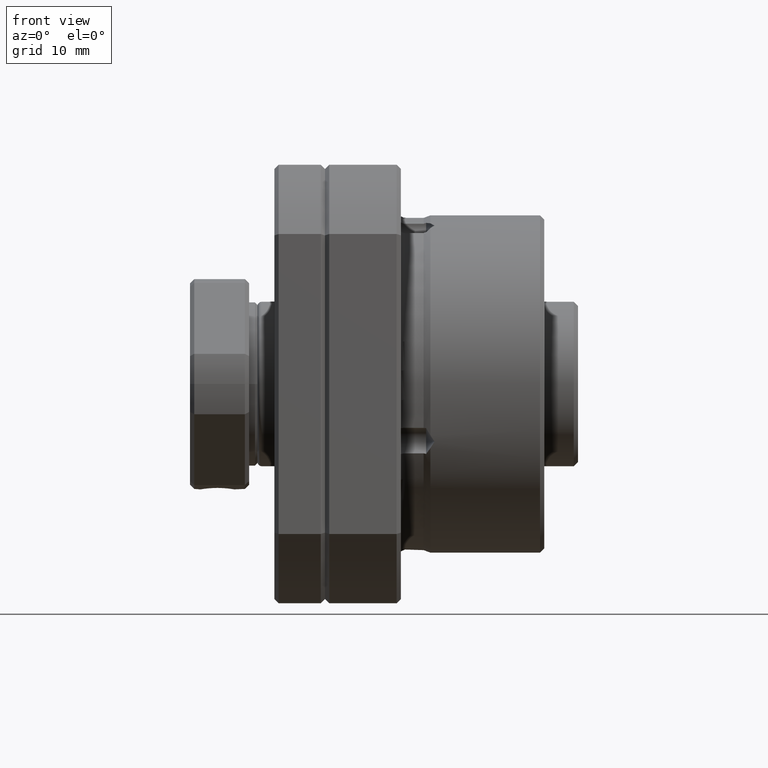
[diagram: clean part render]
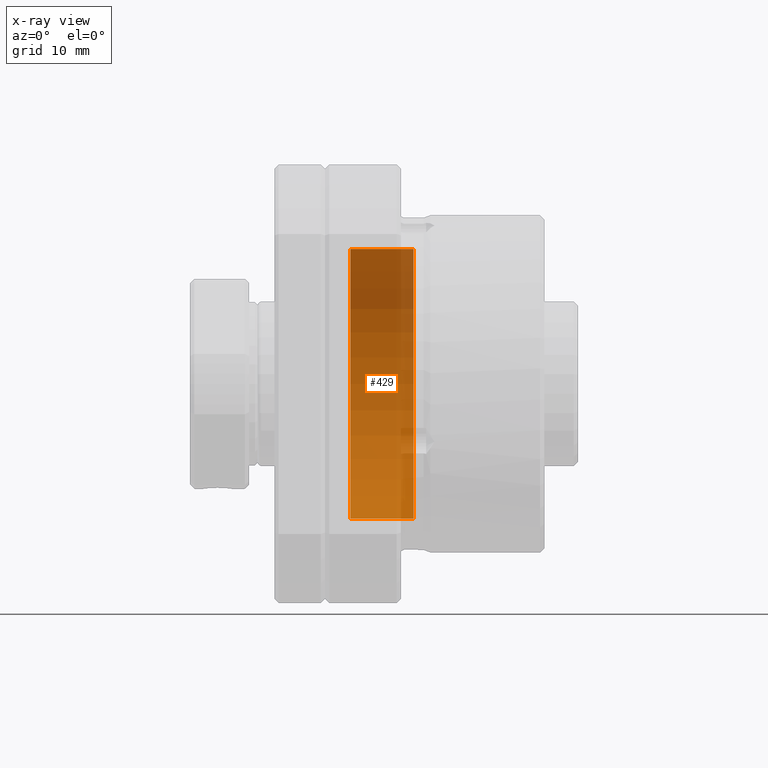
[diagram: x-ray — body ghosted, one internal face saturated and labeled with its STEP entity id]
A machine part, front view, then the same camera in x-ray: the body is ghosted and one INTERNAL B-rep face — a face not visible from any outside direction — is saturated and labeled: STEP entity #429.
In plain terms, the highlighted cylindrical surface (partial cylindrical patch) has radius 16 mm, axis along (-1, 0, 0).
Its self-contained STEP definition (entity closure, byte-faithful):
#421 = VERTEX_POINT ( 'NONE', #3495 ) ;
#422 = VERTEX_POINT ( 'NONE', #3494 ) ;
#423 = EDGE_CURVE ( 'NONE', #421, #459, #3493, .T. ) ;
#424 = ORIENTED_EDGE ( 'NONE', *, *, #423, .T. ) ;
#425 = EDGE_LOOP ( 'NONE', ( #427, #424, #460, #448 ) ) ;
#426 = EDGE_CURVE ( 'NONE', #422, #421, #3489, .T. ) ;
#427 = ORIENTED_EDGE ( 'NONE', *, *, #426, .T. ) ;
#429 = ADVANCED_FACE ( 'NONE', ( #3479 ), #3478, .T. ) ;
#448 = ORIENTED_EDGE ( 'NONE', *, *, #450, .F. ) ;
#449 = VERTEX_POINT ( 'NONE', #3558 ) ;
#450 = EDGE_CURVE ( 'NONE', #422, #449, #3557, .T. ) ;
#454 = EDGE_CURVE ( 'NONE', #449, #459, #3552, .T. ) ;
#459 = VERTEX_POINT ( 'NONE', #3536 ) ;
#460 = ORIENTED_EDGE ( 'NONE', *, *, #454, .F. ) ;
#3477 = AXIS2_PLACEMENT_3D ( 'NONE', #3534, #3533, #3532 ) ;
#3478 = CYLINDRICAL_SURFACE ( 'NONE', #3477, 16.00000000000000700 ) ;
#3479 = FACE_OUTER_BOUND ( 'NONE', #425, .T. ) ;
#3485 = DIRECTION ( 'NONE',  ( 0.0000000000000000000, 4.996003610813203400E-016, 1.000000000000000000 ) ) ;
#3486 = DIRECTION ( 'NONE',  ( -1.000000000000000000, 0.0000000000000000000, 0.0000000000000000000 ) ) ;
#3487 = CARTESIAN_POINT ( 'NONE',  ( 10.49999999999999500, 0.0000000000000000000, 0.0000000000000000000 ) ) ;
#3488 = AXIS2_PLACEMENT_3D ( 'NONE', #3487, #3486, #3485 ) ;
#3489 = CIRCLE ( 'NONE', #3488, 16.00000000000000700 ) ;
#3490 = DIRECTION ( 'NONE',  ( -1.000000000000000000, 0.0000000000000000000, 0.0000000000000000000 ) ) ;
#3491 = VECTOR ( 'NONE', #3490, 1000.000000000000000 ) ;
#3492 = CARTESIAN_POINT ( 'NONE',  ( -61.86252019386108700, -6.034235611185322700E-015, -16.00000000000000700 ) ) ;
#3493 = LINE ( 'NONE', #3492, #3491 ) ;
#3494 = CARTESIAN_POINT ( 'NONE',  ( 10.49999999999999500, 7.993605777301128700E-015, 16.00000000000000700 ) ) ;
#3495 = CARTESIAN_POINT ( 'NONE',  ( 10.49999999999999500, -6.034235611185322700E-015, -16.00000000000000700 ) ) ;
#3532 = DIRECTION ( 'NONE',  ( 0.0000000000000000000, 4.996003610813203400E-016, 1.000000000000000000 ) ) ;
#3533 = DIRECTION ( 'NONE',  ( -1.000000000000000000, 0.0000000000000000000, 0.0000000000000000000 ) ) ;
#3534 = CARTESIAN_POINT ( 'NONE',  ( -61.86252019386108700, 0.0000000000000000000, 0.0000000000000000000 ) ) ;
#3536 = CARTESIAN_POINT ( 'NONE',  ( 2.999999999999988900, -6.034235611185322700E-015, -16.00000000000000700 ) ) ;
#3548 = DIRECTION ( 'NONE',  ( 0.0000000000000000000, 4.996003610813203400E-016, 1.000000000000000000 ) ) ;
#3549 = DIRECTION ( 'NONE',  ( -1.000000000000000000, 0.0000000000000000000, 0.0000000000000000000 ) ) ;
#3550 = CARTESIAN_POINT ( 'NONE',  ( 2.999999999999988900, 0.0000000000000000000, 0.0000000000000000000 ) ) ;
#3551 = AXIS2_PLACEMENT_3D ( 'NONE', #3550, #3549, #3548 ) ;
#3552 = CIRCLE ( 'NONE', #3551, 16.00000000000000700 ) ;
#3554 = DIRECTION ( 'NONE',  ( -1.000000000000000000, 0.0000000000000000000, 0.0000000000000000000 ) ) ;
#3555 = VECTOR ( 'NONE', #3554, 1000.000000000000000 ) ;
#3556 = CARTESIAN_POINT ( 'NONE',  ( -61.86252019386108700, 7.993605777301128700E-015, 16.00000000000000700 ) ) ;
#3557 = LINE ( 'NONE', #3556, #3555 ) ;
#3558 = CARTESIAN_POINT ( 'NONE',  ( 2.999999999999988900, 7.993605777301125500E-015, 16.00000000000000700 ) ) ;